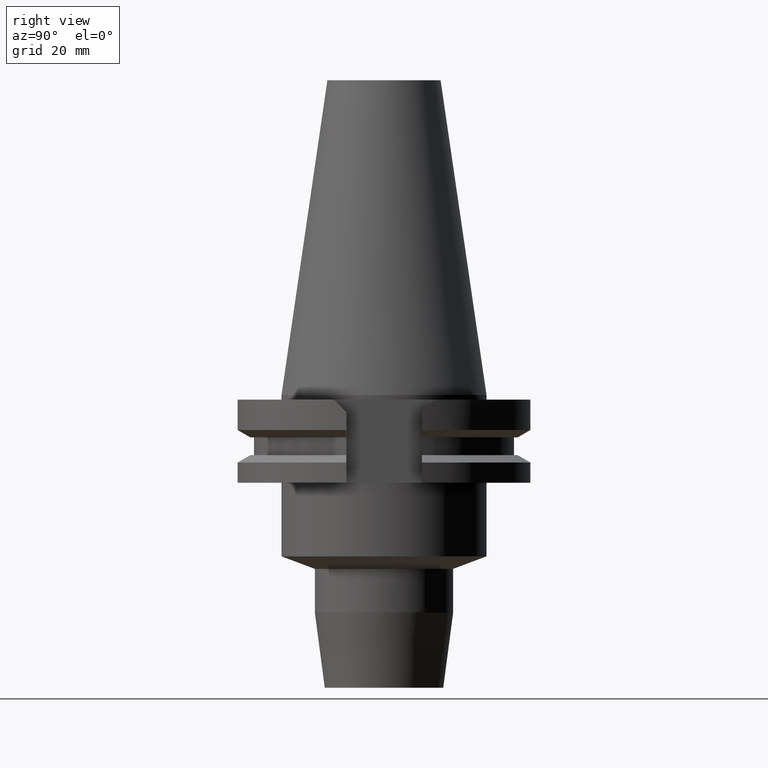
[diagram: clean part render]
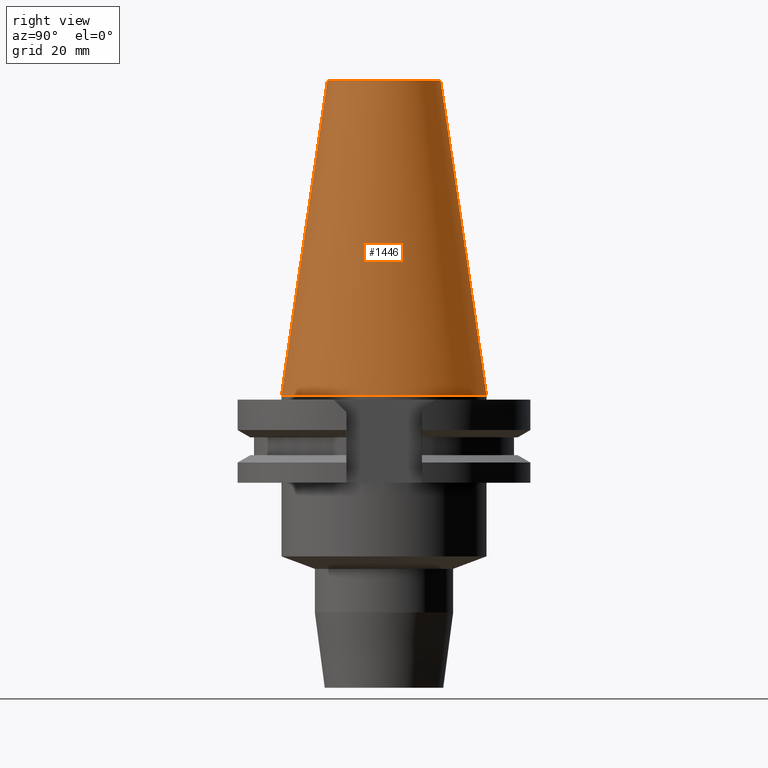
[diagram: same view with one face highlighted and labeled with its STEP entity id]
A machine part, right view. The second image highlights one B-rep face of the part: STEP entity #1446.
In plain terms, the highlighted conical surface has half-angle 8.297 deg.
Its self-contained STEP definition (entity closure, byte-faithful):
#17=DIRECTION('',(0.E0,-1.443069799457E-1,-9.895329683942E-1));
#18=VECTOR('',#17,6.897193138573E1);
#19=CARTESIAN_POINT('',(0.E0,-1.227186888070E1,6.825E1));
#20=LINE('',#19,#18);
#33=DIRECTION('',(0.E0,1.443069799457E-1,-9.895329683942E-1));
#34=VECTOR('',#33,6.897193138573E1);
#35=CARTESIAN_POINT('',(0.E0,1.227186888070E1,6.825E1));
#36=LINE('',#35,#34);
#40=CARTESIAN_POINT('',(0.E0,0.E0,-3.694822225953E-13));
#41=DIRECTION('',(0.E0,0.E0,-1.E0));
#42=DIRECTION('',(0.E0,1.E0,0.E0));
#43=AXIS2_PLACEMENT_3D('',#40,#41,#42);
#1188=CARTESIAN_POINT('',(0.E0,0.E0,6.825E1));
#1189=DIRECTION('',(0.E0,0.E0,-1.E0));
#1190=DIRECTION('',(0.E0,1.E0,0.E0));
#1191=AXIS2_PLACEMENT_3D('',#1188,#1189,#1190);
#1212=CARTESIAN_POINT('',(0.E0,1.227186888070E1,6.825E1));
#1213=CARTESIAN_POINT('',(0.E0,2.2225E1,-2.984279490192E-13));
#1214=VERTEX_POINT('',#1212);
#1215=VERTEX_POINT('',#1213);
#1216=CARTESIAN_POINT('',(0.E0,-1.227186888070E1,6.825E1));
#1217=VERTEX_POINT('',#1216);
#1218=CARTESIAN_POINT('',(0.E0,-2.2225E1,-2.984279490192E-13));
#1219=VERTEX_POINT('',#1218);
#1433=CARTESIAN_POINT('',(0.E0,0.E0,3.4125E1));
#1434=DIRECTION('',(0.E0,0.E0,-1.E0));
#1435=DIRECTION('',(0.E0,-1.E0,0.E0));
#1436=AXIS2_PLACEMENT_3D('',#1433,#1434,#1435);
#1437=CONICAL_SURFACE('',#1436,1.724843444035E1,8.29715E0);
#1438=ORIENTED_EDGE('',*,*,#1422,.T.);
#1440=ORIENTED_EDGE('',*,*,#1439,.T.);
#1441=ORIENTED_EDGE('',*,*,#1426,.F.);
#1443=ORIENTED_EDGE('',*,*,#1442,.F.);
#1444=EDGE_LOOP('',(#1438,#1440,#1441,#1443));
#1445=FACE_OUTER_BOUND('',#1444,.F.);
#44=CIRCLE('',#43,2.2225E1);
#1192=CIRCLE('',#1191,1.227186888070E1);
#1422=EDGE_CURVE('',#1214,#1215,#36,.T.);
#1426=EDGE_CURVE('',#1217,#1219,#20,.T.);
#1439=EDGE_CURVE('',#1215,#1219,#44,.T.);
#1442=EDGE_CURVE('',#1214,#1217,#1192,.T.);
#1446=ADVANCED_FACE('',(#1445),#1437,.T.);